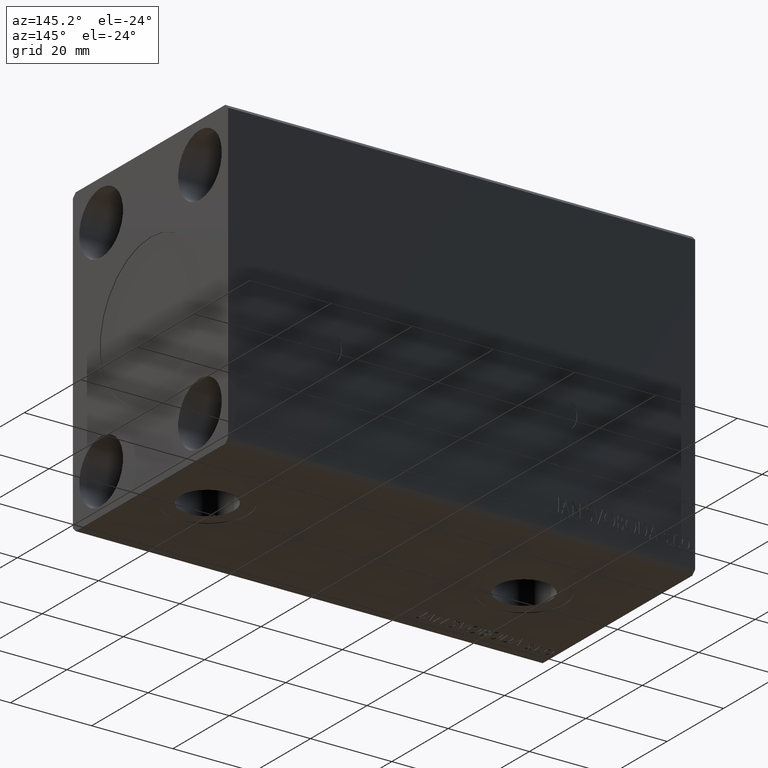
[diagram: clean part render]
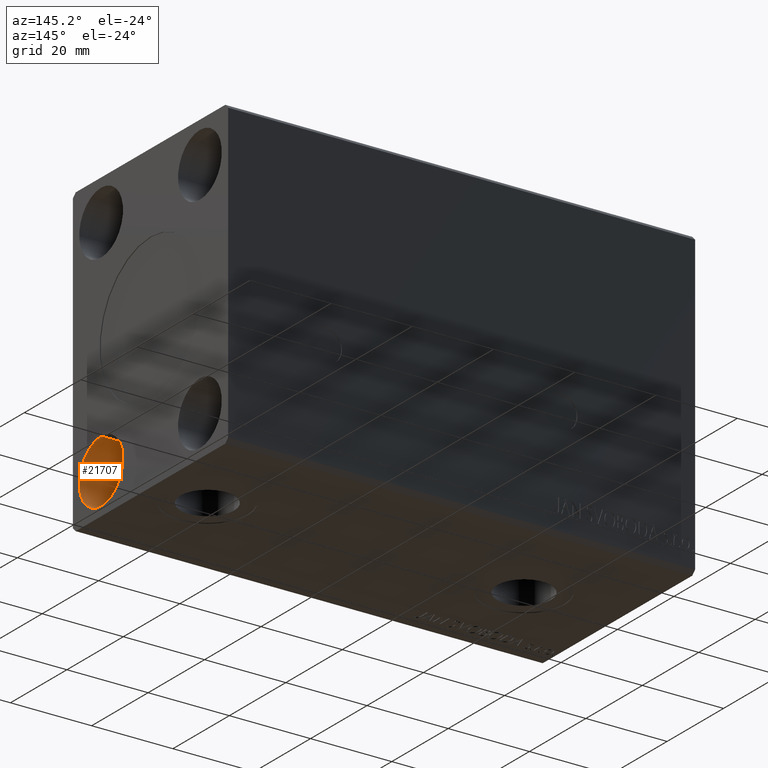
[diagram: same view with one face highlighted and labeled with its STEP entity id]
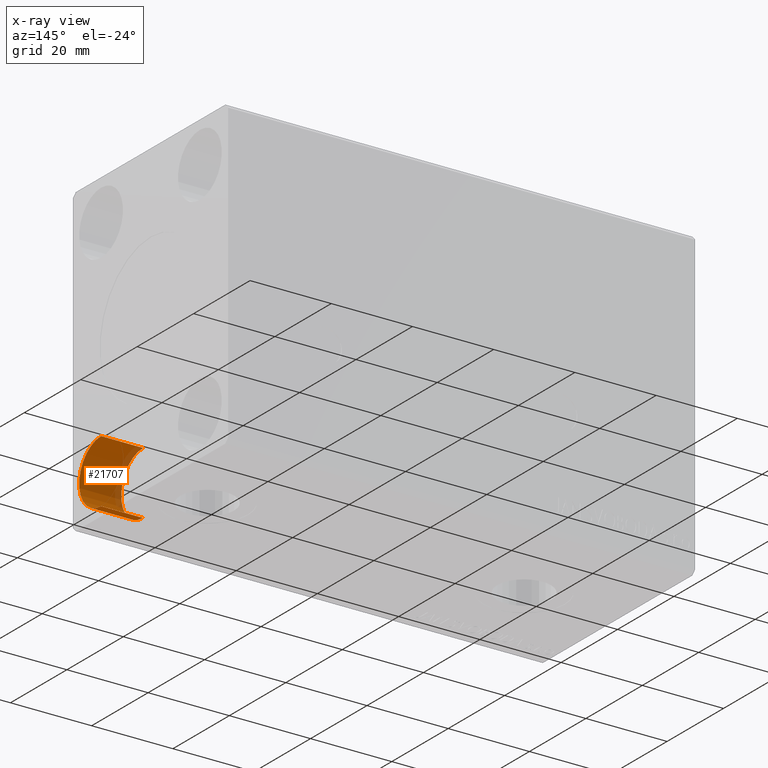
[diagram: x-ray of the same camera — body ghosted, the highlighted face saturated]
A machine part, auxiliary view. The second image highlights one B-rep face of the part: STEP entity #21707.
The next image is the same camera in x-ray: the body ghosted, the highlighted face saturated — about 12% of this face is hidden behind the body in this view.
In plain terms, the highlighted cylindrical surface (partial cylindrical patch) has radius 7.75 mm, axis along (1, -0, -0).
Its self-contained STEP definition (entity closure, byte-faithful):
#1263 = VERTEX_POINT ( 'NONE', #8455 ) ;
#4438 = CARTESIAN_POINT ( 'NONE',  ( 104.6700000000000017, -17.50000000000000000, -35.25000000000000000 ) ) ;
#5156 = DIRECTION ( 'NONE',  ( 0.000000000000000000, 0.000000000000000000, -1.000000000000000000 ) ) ;
#5276 = DIRECTION ( 'NONE',  ( 1.000000000000000000, -0.000000000000000000, -0.000000000000000000 ) ) ;
#6801 = DIRECTION ( 'NONE',  ( 1.000000000000000000, -0.000000000000000000, -0.000000000000000000 ) ) ;
#8375 = VERTEX_POINT ( 'NONE', #27383 ) ;
#8455 = CARTESIAN_POINT ( 'NONE',  ( 115.0000000000000000, -17.50000000000000000, -19.74999999999999645 ) ) ;
#12184 = CIRCLE ( 'NONE', #13581, 7.750000000000003553 ) ;
#12761 = DIRECTION ( 'NONE',  ( 0.000000000000000000, 0.000000000000000000, -1.000000000000000000 ) ) ;
#13056 = LINE ( 'NONE', #39134, #35737 ) ;
#13188 = EDGE_CURVE ( 'NONE', #15368, #8375, #21244, .T. ) ;
#13581 = AXIS2_PLACEMENT_3D ( 'NONE', #31683, #21377, #25458 ) ;
#13804 = EDGE_CURVE ( 'NONE', #1263, #8375, #21683, .T. ) ;
#15368 = VERTEX_POINT ( 'NONE', #36785 ) ;
#18032 = CARTESIAN_POINT ( 'NONE',  ( 104.6700000000000017, -17.50000000000000000, -19.74999999999999645 ) ) ;
#18726 = CARTESIAN_POINT ( 'NONE',  ( 104.6700000000000017, -17.50000000000000000, -27.50000000000000000 ) ) ;
#20827 = EDGE_CURVE ( 'NONE', #24794, #15368, #12184, .T. ) ;
#21244 = LINE ( 'NONE', #4438, #38253 ) ;
#21377 = DIRECTION ( 'NONE',  ( 1.000000000000000000, -0.000000000000000000, -0.000000000000000000 ) ) ;
#21551 = CYLINDRICAL_SURFACE ( 'NONE', #27985, 7.750000000000003553 ) ;
#21683 = CIRCLE ( 'NONE', #40911, 7.750000000000003553 ) ;
#21707 = ADVANCED_FACE ( 'NONE', ( #41138 ), #21551, .F. ) ;
#24794 = VERTEX_POINT ( 'NONE', #18032 ) ;
#25458 = DIRECTION ( 'NONE',  ( 0.000000000000000000, 0.000000000000000000, -1.000000000000000000 ) ) ;
#26115 = CARTESIAN_POINT ( 'NONE',  ( 115.0000000000000000, -17.50000000000000000, -27.50000000000000000 ) ) ;
#27383 = CARTESIAN_POINT ( 'NONE',  ( 115.0000000000000000, -17.50000000000000000, -35.25000000000000000 ) ) ;
#27985 = AXIS2_PLACEMENT_3D ( 'NONE', #18726, #34672, #5156 ) ;
#29771 = DIRECTION ( 'NONE',  ( 1.000000000000000000, -0.000000000000000000, -0.000000000000000000 ) ) ;
#30197 = ORIENTED_EDGE ( 'NONE', *, *, #13188, .F. ) ;
#31683 = CARTESIAN_POINT ( 'NONE',  ( 104.6700000000000017, -17.50000000000000000, -27.50000000000000000 ) ) ;
#32598 = ORIENTED_EDGE ( 'NONE', *, *, #13804, .T. ) ;
#33677 = ORIENTED_EDGE ( 'NONE', *, *, #20827, .F. ) ;
#33920 = EDGE_CURVE ( 'NONE', #24794, #1263, #13056, .T. ) ;
#34672 = DIRECTION ( 'NONE',  ( 1.000000000000000000, -0.000000000000000000, -0.000000000000000000 ) ) ;
#35737 = VECTOR ( 'NONE', #6801, 1000.000000000000000 ) ;
#36785 = CARTESIAN_POINT ( 'NONE',  ( 104.6700000000000017, -17.50000000000000000, -35.25000000000000000 ) ) ;
#38253 = VECTOR ( 'NONE', #5276, 1000.000000000000000 ) ;
#39054 = ORIENTED_EDGE ( 'NONE', *, *, #33920, .T. ) ;
#39134 = CARTESIAN_POINT ( 'NONE',  ( 104.6700000000000017, -17.50000000000000000, -19.74999999999999645 ) ) ;
#40902 = EDGE_LOOP ( 'NONE', ( #33677, #39054, #32598, #30197 ) ) ;
#40911 = AXIS2_PLACEMENT_3D ( 'NONE', #26115, #29771, #12761 ) ;
#41138 = FACE_OUTER_BOUND ( 'NONE', #40902, .T. ) ;